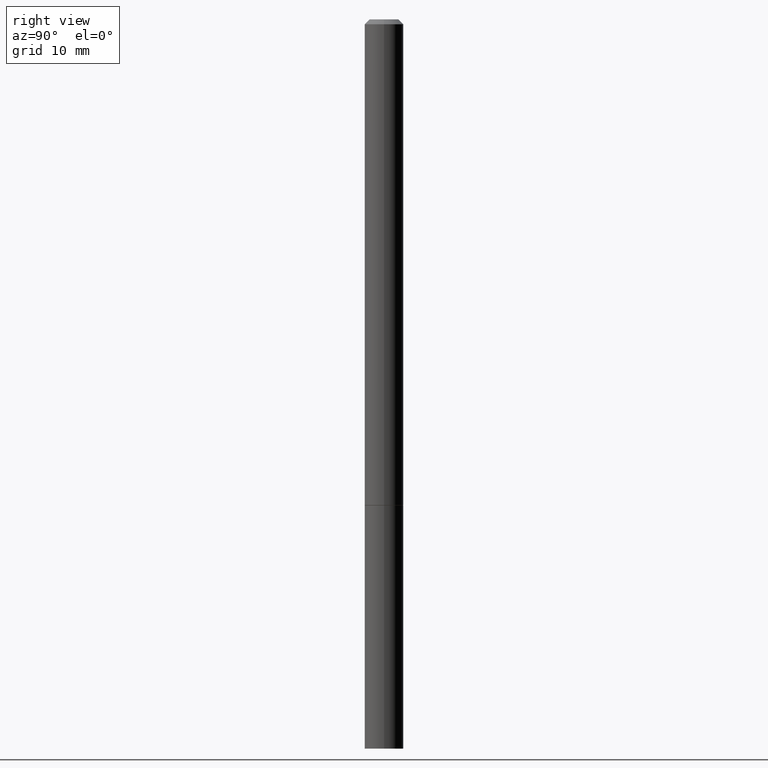
[diagram: clean part render]
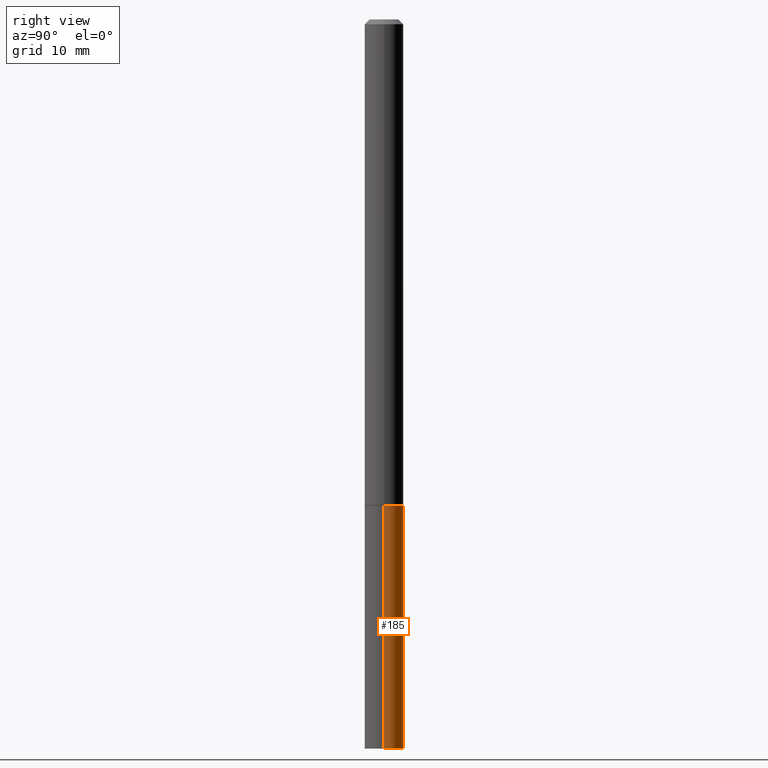
[diagram: same view with one face highlighted and labeled with its STEP entity id]
A machine part, right view. The second image highlights one B-rep face of the part: STEP entity #185.
In plain terms, the highlighted cylindrical surface (edge-blend (fillet) strip) has radius 2.0002 mm, axis along (-0, 0, 1).
Its self-contained STEP definition (entity closure, byte-faithful):
#15 = DIRECTION ( 'NONE',  ( -2.445468806185136877E-29, 3.491481338843145188E-15, 1.000000000000000000 ) ) ;
#36 = EDGE_CURVE ( 'NONE', #108, #80, #325, .T. ) ;
#43 = EDGE_LOOP ( 'NONE', ( #245, #197, #74, #355 ) ) ;
#49 = VERTEX_POINT ( 'NONE', #99 ) ;
#65 = CARTESIAN_POINT ( 'NONE',  ( 0.000000000000000000, 0.000000000000000000, 0.000000000000000000 ) ) ;
#74 = ORIENTED_EDGE ( 'NONE', *, *, #260, .F. ) ;
#80 = VERTEX_POINT ( 'NONE', #109 ) ;
#81 = VECTOR ( 'NONE', #15, 39.37007874015748143 ) ;
#99 = CARTESIAN_POINT ( 'NONE',  ( 0.07875000000000000056, -7.422889326380523475E-15, -1.968499999999999694 ) ) ;
#108 = VERTEX_POINT ( 'NONE', #139 ) ;
#109 = CARTESIAN_POINT ( 'NONE',  ( -0.07875000000000000056, -8.031761152013305527E-15, -1.968499999999999694 ) ) ;
#117 = DIRECTION ( 'NONE',  ( 1.000000000000000000, -6.982962677686261977E-15, 0.000000000000000000 ) ) ;
#139 = CARTESIAN_POINT ( 'NONE',  ( -0.07875000000000000056, -8.031761152013305527E-15, -2.952799999999999869 ) ) ;
#144 = AXIS2_PLACEMENT_3D ( 'NONE', #269, #342, #117 ) ;
#145 = CYLINDRICAL_SURFACE ( 'NONE', #253, 0.07875000000000000056 ) ;
#172 = CARTESIAN_POINT ( 'NONE',  ( 4.813905344975440714E-29, -6.872981015512730918E-15, -1.968499999999999694 ) ) ;
#173 = VECTOR ( 'NONE', #244, 39.37007874015748143 ) ;
#185 = ADVANCED_FACE ( 'NONE', ( #203 ), #145, .T. ) ;
#187 = CARTESIAN_POINT ( 'NONE',  ( 0.07875000000000000056, -1.085955440820383187E-14, -2.952799999999999869 ) ) ;
#195 = EDGE_CURVE ( 'NONE', #352, #108, #315, .T. ) ;
#197 = ORIENTED_EDGE ( 'NONE', *, *, #36, .T. ) ;
#203 = FACE_OUTER_BOUND ( 'NONE', #43, .T. ) ;
#205 = CIRCLE ( 'NONE', #365, 0.07875000000000000056 ) ;
#206 = DIRECTION ( 'NONE',  ( 1.000000000000000000, -6.982962677686265922E-15, 4.876176775795935232E-29 ) ) ;
#235 = DIRECTION ( 'NONE',  ( -2.445468806185136597E-29, 3.491481338843145583E-15, 1.000000000000000000 ) ) ;
#244 = DIRECTION ( 'NONE',  ( -2.445468806185136877E-29, 3.491481338843145188E-15, 1.000000000000000000 ) ) ;
#245 = ORIENTED_EDGE ( 'NONE', *, *, #195, .T. ) ;
#253 = AXIS2_PLACEMENT_3D ( 'NONE', #65, #362, #206 ) ;
#260 = EDGE_CURVE ( 'NONE', #49, #80, #205, .T. ) ;
#262 = DIRECTION ( 'NONE',  ( 1.000000000000000000, -6.982962677686261977E-15, 0.000000000000000000 ) ) ;
#269 = CARTESIAN_POINT ( 'NONE',  ( 7.220980290903470182E-29, -1.030964609733603853E-14, -2.952799999999999869 ) ) ;
#275 = CARTESIAN_POINT ( 'NONE',  ( 0.07875000000000000056, -5.499083108677934443E-16, 3.839989210939299016E-30 ) ) ;
#315 = CIRCLE ( 'NONE', #144, 0.07875000000000000056 ) ;
#325 = LINE ( 'NONE', #350, #173 ) ;
#340 = EDGE_CURVE ( 'NONE', #352, #49, #354, .T. ) ;
#342 = DIRECTION ( 'NONE',  ( -2.445468806185136597E-29, 3.491481338843145583E-15, 1.000000000000000000 ) ) ;
#350 = CARTESIAN_POINT ( 'NONE',  ( -0.07875000000000000056, 5.595524044110789003E-16, -3.873661383575737792E-30 ) ) ;
#352 = VERTEX_POINT ( 'NONE', #187 ) ;
#354 = LINE ( 'NONE', #275, #81 ) ;
#355 = ORIENTED_EDGE ( 'NONE', *, *, #340, .F. ) ;
#362 = DIRECTION ( 'NONE',  ( -2.445468806185136597E-29, 3.491481338843145583E-15, 1.000000000000000000 ) ) ;
#365 = AXIS2_PLACEMENT_3D ( 'NONE', #172, #235, #262 ) ;